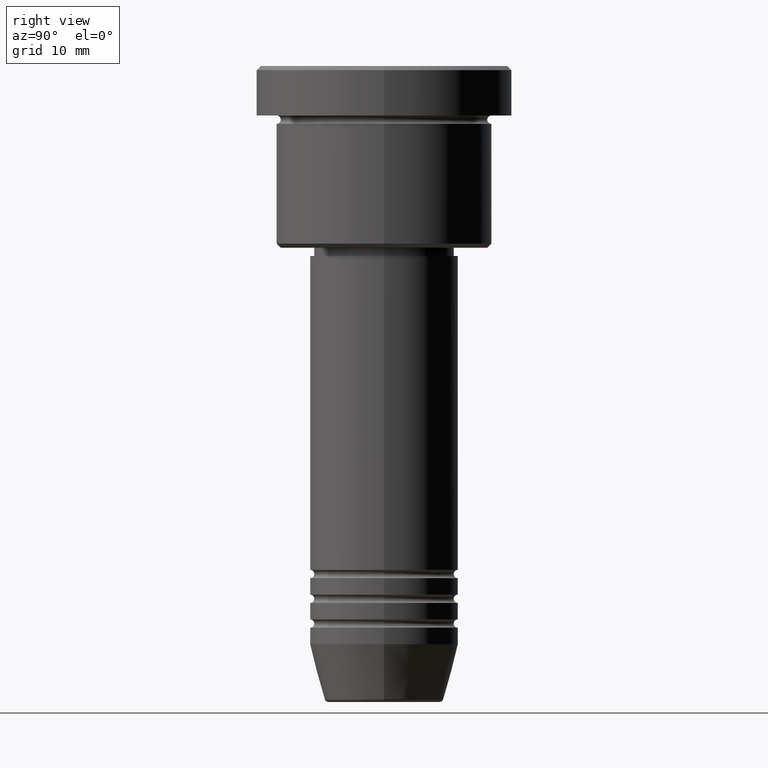
[diagram: clean part render]
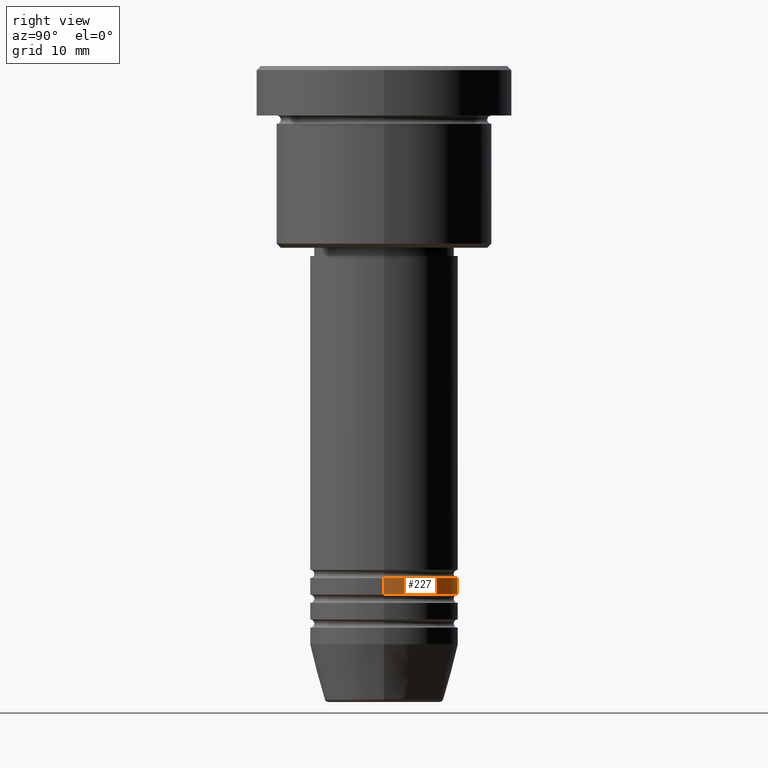
[diagram: same view with one face highlighted and labeled with its STEP entity id]
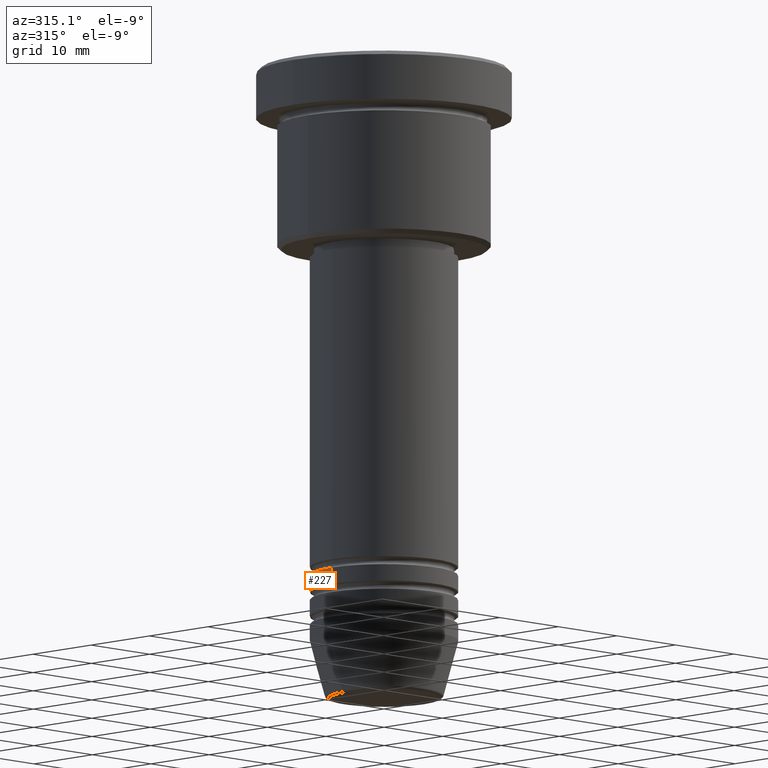
[diagram: same view with one face highlighted and labeled with its STEP entity id]
A machine part, right view. The second image highlights one B-rep face of the part: STEP entity #227.
A second angle (auxiliary view) of the same face is appended — the face is thin or edge-on in the first view.
In plain terms, the highlighted cylindrical surface (partial cylindrical patch) has radius 9 mm, axis along (-0, -0, 1).
Its self-contained STEP definition (entity closure, byte-faithful):
#18 = CARTESIAN_POINT ( 'NONE',  ( -9.000000000000000000, 1.102182119232617714E-15, -61.99999999999998579 ) ) ;
#24 = EDGE_CURVE ( 'NONE', #669, #695, #141, .T. ) ;
#43 = VECTOR ( 'NONE', #272, 1000.000000000000000 ) ;
#61 = CARTESIAN_POINT ( 'NONE',  ( 0.000000000000000000, 0.000000000000000000, 0.000000000000000000 ) ) ;
#85 = EDGE_LOOP ( 'NONE', ( #876, #751, #403, #299 ) ) ;
#123 = EDGE_CURVE ( 'NONE', #695, #1061, #341, .T. ) ;
#141 = CIRCLE ( 'NONE', #234, 9.000000000000000000 ) ;
#150 = CARTESIAN_POINT ( 'NONE',  ( -9.000000000000000000, 1.102182119232617714E-15, 0.000000000000000000 ) ) ;
#157 = CARTESIAN_POINT ( 'NONE',  ( 9.000000000000000000, 0.000000000000000000, -61.99999999999998579 ) ) ;
#164 = DIRECTION ( 'NONE',  ( 1.000000000000000000, 0.000000000000000000, 0.000000000000000000 ) ) ;
#212 = EDGE_CURVE ( 'NONE', #1178, #1061, #600, .T. ) ;
#227 = ADVANCED_FACE ( 'NONE', ( #884 ), #1134, .T. ) ;
#234 = AXIS2_PLACEMENT_3D ( 'NONE', #775, #683, #1118 ) ;
#272 = DIRECTION ( 'NONE',  ( -0.000000000000000000, -0.000000000000000000, 1.000000000000000000 ) ) ;
#287 = DIRECTION ( 'NONE',  ( -0.000000000000000000, -0.000000000000000000, 1.000000000000000000 ) ) ;
#299 = ORIENTED_EDGE ( 'NONE', *, *, #421, .F. ) ;
#341 = LINE ( 'NONE', #150, #752 ) ;
#403 = ORIENTED_EDGE ( 'NONE', *, *, #212, .F. ) ;
#421 = EDGE_CURVE ( 'NONE', #669, #1178, #1168, .T. ) ;
#454 = DIRECTION ( 'NONE',  ( 1.000000000000000000, 0.000000000000000000, 0.000000000000000000 ) ) ;
#600 = CIRCLE ( 'NONE', #1167, 9.000000000000000000 ) ;
#611 = DIRECTION ( 'NONE',  ( -0.000000000000000000, -0.000000000000000000, 1.000000000000000000 ) ) ;
#626 = CARTESIAN_POINT ( 'NONE',  ( 0.000000000000000000, 0.000000000000000000, -61.99999999999998579 ) ) ;
#653 = AXIS2_PLACEMENT_3D ( 'NONE', #61, #611, #164 ) ;
#669 = VERTEX_POINT ( 'NONE', #938 ) ;
#683 = DIRECTION ( 'NONE',  ( -0.000000000000000000, -0.000000000000000000, 1.000000000000000000 ) ) ;
#695 = VERTEX_POINT ( 'NONE', #1162 ) ;
#716 = CARTESIAN_POINT ( 'NONE',  ( 9.000000000000000000, 0.000000000000000000, 0.000000000000000000 ) ) ;
#751 = ORIENTED_EDGE ( 'NONE', *, *, #123, .T. ) ;
#752 = VECTOR ( 'NONE', #781, 1000.000000000000000 ) ;
#775 = CARTESIAN_POINT ( 'NONE',  ( 0.000000000000000000, 0.000000000000000000, -63.99999999999998579 ) ) ;
#781 = DIRECTION ( 'NONE',  ( -0.000000000000000000, -0.000000000000000000, 1.000000000000000000 ) ) ;
#876 = ORIENTED_EDGE ( 'NONE', *, *, #24, .T. ) ;
#884 = FACE_OUTER_BOUND ( 'NONE', #85, .T. ) ;
#938 = CARTESIAN_POINT ( 'NONE',  ( 9.000000000000000000, 0.000000000000000000, -63.99999999999998579 ) ) ;
#1061 = VERTEX_POINT ( 'NONE', #18 ) ;
#1118 = DIRECTION ( 'NONE',  ( 1.000000000000000000, 0.000000000000000000, 0.000000000000000000 ) ) ;
#1134 = CYLINDRICAL_SURFACE ( 'NONE', #653, 9.000000000000000000 ) ;
#1162 = CARTESIAN_POINT ( 'NONE',  ( -9.000000000000000000, 1.102182119232617714E-15, -63.99999999999998579 ) ) ;
#1167 = AXIS2_PLACEMENT_3D ( 'NONE', #626, #287, #454 ) ;
#1168 = LINE ( 'NONE', #716, #43 ) ;
#1178 = VERTEX_POINT ( 'NONE', #157 ) ;